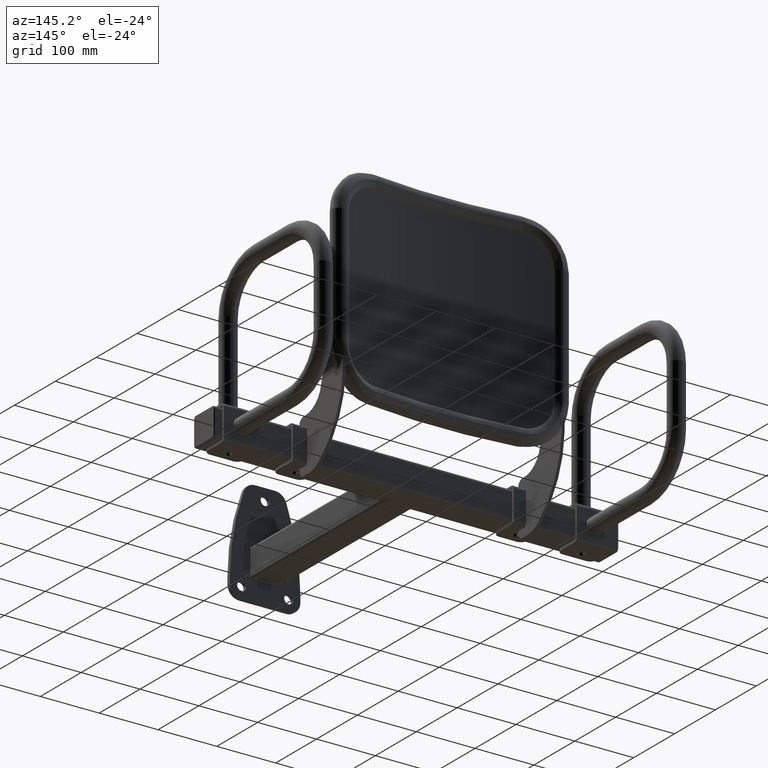
[diagram: clean part render]
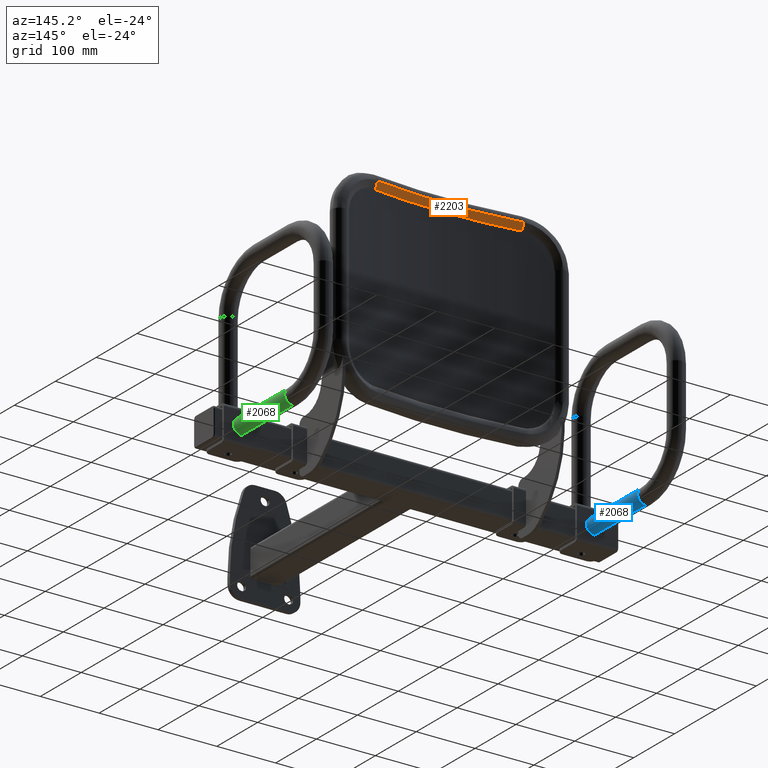
[diagram: same view with three faces highlighted in distinct colors, each labeled with its STEP entity id]
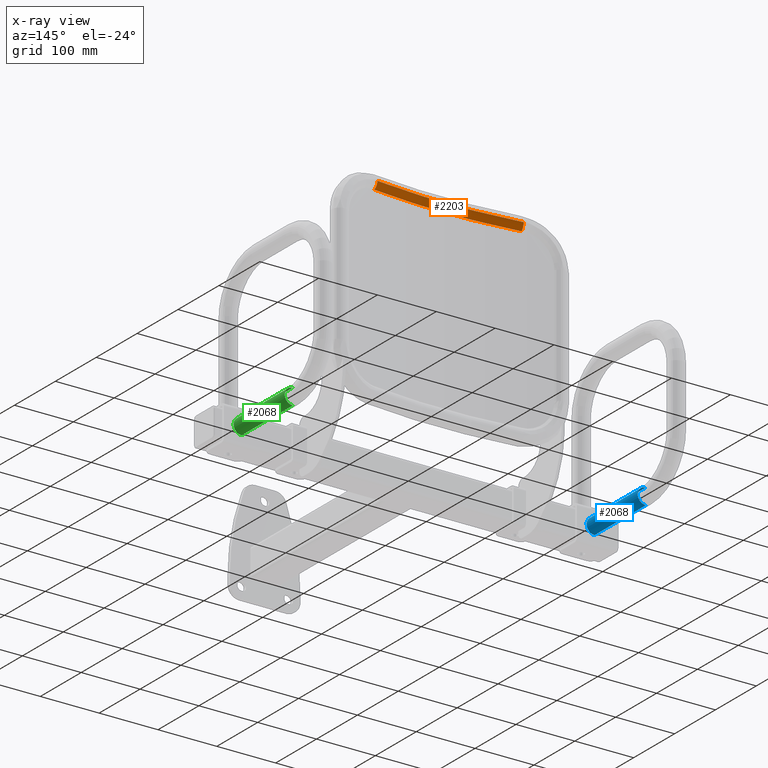
[diagram: x-ray of the same camera — body ghosted, the three highlighted faces saturated]
A machine part, auxiliary view with three faces highlighted in distinct colors.
The next image is the same camera in x-ray (body ghosted, the three faces saturated) — at least one of them is partly hidden behind the body in this view.
Their STEP definitions:

[orange] entity #2203 — the highlighted toroidal blend (fillet) surface has major radius 930 mm and minor (blend) radius 13.45 mm.
#1030 = ORIENTED_EDGE ( 'NONE', *, *, #5940, .F. ) ;
#1062 = ORIENTED_EDGE ( 'NONE', *, *, #5930, .T. ) ;
#1063 = ORIENTED_EDGE ( 'NONE', *, *, #5939, .F. ) ;
#1592 = CARTESIAN_POINT ( 'NONE',  ( -124.2796554685772300, 0.1549999289233133800, 161.5500000000000100 ) ) ;
#1612 = CARTESIAN_POINT ( 'NONE',  ( 125.1688845898651600, -6.342408466294028100, 150.0000000000000000 ) ) ;
#1805 = VERTEX_POINT ( 'NONE', #3336 ) ;
#2203 = ADVANCED_FACE ( 'NONE', ( #2723 ), #2722, .T. ) ;
#2527 = CIRCLE ( 'NONE', #9329, 13.44999999999999900 ) ;
#2534 = CIRCLE ( 'NONE', #9332, 923.1079756239551000 ) ;
#2535 = CIRCLE ( 'NONE', #9333, 13.44999999999999800 ) ;
#2537 = CIRCLE ( 'NONE', #9334, 916.5500000000001800 ) ;
#2722 = TOROIDAL_SURFACE ( 'NONE', #4710, 930.0000000000001100, 13.44999999999999900 ) ;
#2723 = FACE_OUTER_BOUND ( 'NONE', #7423, .T. ) ;
#3336 = CARTESIAN_POINT ( 'NONE',  ( 124.2796554685772300, 0.1549999289233151300, 161.5500000000000100 ) ) ;
#4710 = AXIS2_PLACEMENT_3D ( 'NONE', #9618, #9620, #9621 ) ;
#5023 = VERTEX_POINT ( 'NONE', #7889 ) ;
#5034 = ORIENTED_EDGE ( 'NONE', *, *, #5941, .F. ) ;
#5930 = EDGE_CURVE ( 'NONE', #1805, #9466, #2527, .T. ) ;
#5939 = EDGE_CURVE ( 'NONE', #5023, #9466, #2534, .T. ) ;
#5940 = EDGE_CURVE ( 'NONE', #9446, #5023, #2535, .T. ) ;
#5941 = EDGE_CURVE ( 'NONE', #1805, #9446, #2537, .T. ) ;
#7423 = EDGE_LOOP ( 'NONE', ( #1063, #1030, #5034, #1062 ) ) ;
#7889 = CARTESIAN_POINT ( 'NONE',  ( -125.1688845898651600, -6.342408466294024500, 150.0000000000000000 ) ) ;
#8027 = CARTESIAN_POINT ( 'NONE',  ( 126.1034090729112900, -13.17078045312855900, 161.5500000000000100 ) ) ;
#8028 = DIRECTION ( 'NONE',  ( -0.9907643406730016800, -0.1355950635192603700, 7.345157974991788100E-016 ) ) ;
#8029 = DIRECTION ( 'NONE',  ( 0.1355950635192593700, -0.9907643406730019000, 0.0000000000000000000 ) ) ;
#8116 = CARTESIAN_POINT ( 'NONE',  ( 0.0000000000000000000, 908.2400563727633200, 150.0000000000000000 ) ) ;
#8117 = DIRECTION ( 'NONE',  ( 0.0000000000000000000, 0.0000000000000000000, 1.000000000000000000 ) ) ;
#8118 = DIRECTION ( 'NONE',  ( -1.000000000000000000, 0.0000000000000000000, 0.0000000000000000000 ) ) ;
#8121 = CARTESIAN_POINT ( 'NONE',  ( -126.1034090729112900, -13.17078045312856100, 161.5500000000000100 ) ) ;
#8122 = DIRECTION ( 'NONE',  ( -0.9907643406730016800, 0.1355950635192603700, -7.345157974991788100E-016 ) ) ;
#8123 = DIRECTION ( 'NONE',  ( -0.1355950635192594000, -0.9907643406730019000, 0.0000000000000000000 ) ) ;
#8126 = CARTESIAN_POINT ( 'NONE',  ( 0.0000000000000000000, 908.2400563727633200, 161.5500000000000100 ) ) ;
#8127 = DIRECTION ( 'NONE',  ( -0.0000000000000000000, -0.0000000000000000000, -1.000000000000000000 ) ) ;
#8128 = DIRECTION ( 'NONE',  ( 1.000000000000000000, 0.0000000000000000000, 0.0000000000000000000 ) ) ;
#9329 = AXIS2_PLACEMENT_3D ( 'NONE', #8027, #8028, #8029 ) ;
#9332 = AXIS2_PLACEMENT_3D ( 'NONE', #8116, #8117, #8118 ) ;
#9333 = AXIS2_PLACEMENT_3D ( 'NONE', #8121, #8122, #8123 ) ;
#9334 = AXIS2_PLACEMENT_3D ( 'NONE', #8126, #8127, #8128 ) ;
#9446 = VERTEX_POINT ( 'NONE', #1592 ) ;
#9466 = VERTEX_POINT ( 'NONE', #1612 ) ;
#9618 = CARTESIAN_POINT ( 'NONE',  ( 0.0000000000000000000, 908.2400563727633200, 161.5500000000000100 ) ) ;
#9620 = DIRECTION ( 'NONE',  ( 0.0000000000000000000, 0.0000000000000000000, 1.000000000000000000 ) ) ;
#9621 = DIRECTION ( 'NONE',  ( 1.000000000000000000, 0.0000000000000000000, 0.0000000000000000000 ) ) ;

[blue] entity #2068 — the highlighted cylindrical surface (edge-blend (fillet) strip) has radius 13.5 mm, axis along (-0, -1, -0).
#763 = VERTEX_POINT ( 'NONE', #3263 ) ;
#952 = ORIENTED_EDGE ( 'NONE', *, *, #9056, .F. ) ;
#953 = ORIENTED_EDGE ( 'NONE', *, *, #3942, .T. ) ;
#954 = ORIENTED_EDGE ( 'NONE', *, *, #3945, .T. ) ;
#955 = ORIENTED_EDGE ( 'NONE', *, *, #3947, .F. ) ;
#1821 = CIRCLE ( 'NONE', #9353, 13.50000000000000000 ) ;
#2068 = ADVANCED_FACE ( 'NONE', ( #8607 ), #8612, .T. ) ;
#2302 = LINE ( 'NONE', #6742, #2309 ) ;
#2306 = CIRCLE ( 'NONE', #10233, 13.50000000000000000 ) ;
#2309 = VECTOR ( 'NONE', #6747, 1000.000000000000000 ) ;
#2310 = LINE ( 'NONE', #6748, #2312 ) ;
#2312 = VECTOR ( 'NONE', #6746, 1000.000000000000000 ) ;
#3263 = CARTESIAN_POINT ( 'NONE',  ( 0.0000000000000000000, 128.9999999999995200, -13.50000000000000200 ) ) ;
#3942 = EDGE_CURVE ( 'NONE', #7659, #7556, #2302, .T. ) ;
#3945 = EDGE_CURVE ( 'NONE', #7556, #7657, #2306, .T. ) ;
#3947 = EDGE_CURVE ( 'NONE', #763, #7657, #2310, .T. ) ;
#4523 = DIRECTION ( 'NONE',  ( 0.0000000000000000000, 0.0000000000000000000, -1.000000000000000000 ) ) ;
#4524 = CARTESIAN_POINT ( 'NONE',  ( 0.0000000000000000000, 128.9999999999995200, -1.301042606982614600E-015 ) ) ;
#4525 = DIRECTION ( 'NONE',  ( -0.0000000000000000000, -1.000000000000000000, -1.734723475976806500E-017 ) ) ;
#6742 = CARTESIAN_POINT ( 'NONE',  ( 1.653273178848926900E-015, 128.9999999999995200, 13.49999999999999800 ) ) ;
#6746 = DIRECTION ( 'NONE',  ( -0.0000000000000000000, -1.000000000000000000, -1.734723475976806500E-017 ) ) ;
#6747 = DIRECTION ( 'NONE',  ( -0.0000000000000000000, -1.000000000000000000, -1.734723475976806500E-017 ) ) ;
#6748 = CARTESIAN_POINT ( 'NONE',  ( 0.0000000000000000000, 128.9999999999995200, -13.50000000000000200 ) ) ;
#6751 = CARTESIAN_POINT ( 'NONE',  ( 0.0000000000000000000, 4.000000000000000000, -3.469446951953614200E-015 ) ) ;
#6752 = DIRECTION ( 'NONE',  ( 0.0000000000000000000, 1.000000000000000000, 0.0000000000000000000 ) ) ;
#6753 = DIRECTION ( 'NONE',  ( 0.0000000000000000000, 0.0000000000000000000, 1.000000000000000000 ) ) ;
#7395 = EDGE_LOOP ( 'NONE', ( #952, #953, #954, #955 ) ) ;
#7556 = VERTEX_POINT ( 'NONE', #8202 ) ;
#7657 = VERTEX_POINT ( 'NONE', #8255 ) ;
#7659 = VERTEX_POINT ( 'NONE', #8256 ) ;
#8202 = CARTESIAN_POINT ( 'NONE',  ( 1.653273178848926900E-015, 4.000000000000000000, 13.49999999999999600 ) ) ;
#8255 = CARTESIAN_POINT ( 'NONE',  ( 0.0000000000000000000, 4.000000000000000000, -13.50000000000000500 ) ) ;
#8256 = CARTESIAN_POINT ( 'NONE',  ( 1.653273178848926900E-015, 128.9999999999995200, 13.49999999999999800 ) ) ;
#8341 = CARTESIAN_POINT ( 'NONE',  ( 0.0000000000000000000, 128.9999999999995200, -1.301042606982614600E-015 ) ) ;
#8342 = DIRECTION ( 'NONE',  ( 0.0000000000000000000, 1.000000000000000000, 0.0000000000000000000 ) ) ;
#8343 = DIRECTION ( 'NONE',  ( 0.0000000000000000000, 0.0000000000000000000, 1.000000000000000000 ) ) ;
#8607 = FACE_OUTER_BOUND ( 'NONE', #7395, .T. ) ;
#8612 = CYLINDRICAL_SURFACE ( 'NONE', #9553, 13.50000000000000000 ) ;
#9056 = EDGE_CURVE ( 'NONE', #7659, #763, #1821, .T. ) ;
#9353 = AXIS2_PLACEMENT_3D ( 'NONE', #8341, #8342, #8343 ) ;
#9553 = AXIS2_PLACEMENT_3D ( 'NONE', #4524, #4525, #4523 ) ;
#10233 = AXIS2_PLACEMENT_3D ( 'NONE', #6751, #6752, #6753 ) ;

[green] entity #2068 — the highlighted cylindrical surface (edge-blend (fillet) strip) has radius 13.5 mm, axis along (-0, -1, -0).
#763 = VERTEX_POINT ( 'NONE', #3263 ) ;
#952 = ORIENTED_EDGE ( 'NONE', *, *, #9056, .F. ) ;
#953 = ORIENTED_EDGE ( 'NONE', *, *, #3942, .T. ) ;
#954 = ORIENTED_EDGE ( 'NONE', *, *, #3945, .T. ) ;
#955 = ORIENTED_EDGE ( 'NONE', *, *, #3947, .F. ) ;
#1821 = CIRCLE ( 'NONE', #9353, 13.50000000000000000 ) ;
#2068 = ADVANCED_FACE ( 'NONE', ( #8607 ), #8612, .T. ) ;
#2302 = LINE ( 'NONE', #6742, #2309 ) ;
#2306 = CIRCLE ( 'NONE', #10233, 13.50000000000000000 ) ;
#2309 = VECTOR ( 'NONE', #6747, 1000.000000000000000 ) ;
#2310 = LINE ( 'NONE', #6748, #2312 ) ;
#2312 = VECTOR ( 'NONE', #6746, 1000.000000000000000 ) ;
#3263 = CARTESIAN_POINT ( 'NONE',  ( 0.0000000000000000000, 128.9999999999995200, -13.50000000000000200 ) ) ;
#3942 = EDGE_CURVE ( 'NONE', #7659, #7556, #2302, .T. ) ;
#3945 = EDGE_CURVE ( 'NONE', #7556, #7657, #2306, .T. ) ;
#3947 = EDGE_CURVE ( 'NONE', #763, #7657, #2310, .T. ) ;
#4523 = DIRECTION ( 'NONE',  ( 0.0000000000000000000, 0.0000000000000000000, -1.000000000000000000 ) ) ;
#4524 = CARTESIAN_POINT ( 'NONE',  ( 0.0000000000000000000, 128.9999999999995200, -1.301042606982614600E-015 ) ) ;
#4525 = DIRECTION ( 'NONE',  ( -0.0000000000000000000, -1.000000000000000000, -1.734723475976806500E-017 ) ) ;
#6742 = CARTESIAN_POINT ( 'NONE',  ( 1.653273178848926900E-015, 128.9999999999995200, 13.49999999999999800 ) ) ;
#6746 = DIRECTION ( 'NONE',  ( -0.0000000000000000000, -1.000000000000000000, -1.734723475976806500E-017 ) ) ;
#6747 = DIRECTION ( 'NONE',  ( -0.0000000000000000000, -1.000000000000000000, -1.734723475976806500E-017 ) ) ;
#6748 = CARTESIAN_POINT ( 'NONE',  ( 0.0000000000000000000, 128.9999999999995200, -13.50000000000000200 ) ) ;
#6751 = CARTESIAN_POINT ( 'NONE',  ( 0.0000000000000000000, 4.000000000000000000, -3.469446951953614200E-015 ) ) ;
#6752 = DIRECTION ( 'NONE',  ( 0.0000000000000000000, 1.000000000000000000, 0.0000000000000000000 ) ) ;
#6753 = DIRECTION ( 'NONE',  ( 0.0000000000000000000, 0.0000000000000000000, 1.000000000000000000 ) ) ;
#7395 = EDGE_LOOP ( 'NONE', ( #952, #953, #954, #955 ) ) ;
#7556 = VERTEX_POINT ( 'NONE', #8202 ) ;
#7657 = VERTEX_POINT ( 'NONE', #8255 ) ;
#7659 = VERTEX_POINT ( 'NONE', #8256 ) ;
#8202 = CARTESIAN_POINT ( 'NONE',  ( 1.653273178848926900E-015, 4.000000000000000000, 13.49999999999999600 ) ) ;
#8255 = CARTESIAN_POINT ( 'NONE',  ( 0.0000000000000000000, 4.000000000000000000, -13.50000000000000500 ) ) ;
#8256 = CARTESIAN_POINT ( 'NONE',  ( 1.653273178848926900E-015, 128.9999999999995200, 13.49999999999999800 ) ) ;
#8341 = CARTESIAN_POINT ( 'NONE',  ( 0.0000000000000000000, 128.9999999999995200, -1.301042606982614600E-015 ) ) ;
#8342 = DIRECTION ( 'NONE',  ( 0.0000000000000000000, 1.000000000000000000, 0.0000000000000000000 ) ) ;
#8343 = DIRECTION ( 'NONE',  ( 0.0000000000000000000, 0.0000000000000000000, 1.000000000000000000 ) ) ;
#8607 = FACE_OUTER_BOUND ( 'NONE', #7395, .T. ) ;
#8612 = CYLINDRICAL_SURFACE ( 'NONE', #9553, 13.50000000000000000 ) ;
#9056 = EDGE_CURVE ( 'NONE', #7659, #763, #1821, .T. ) ;
#9353 = AXIS2_PLACEMENT_3D ( 'NONE', #8341, #8342, #8343 ) ;
#9553 = AXIS2_PLACEMENT_3D ( 'NONE', #4524, #4525, #4523 ) ;
#10233 = AXIS2_PLACEMENT_3D ( 'NONE', #6751, #6752, #6753 ) ;